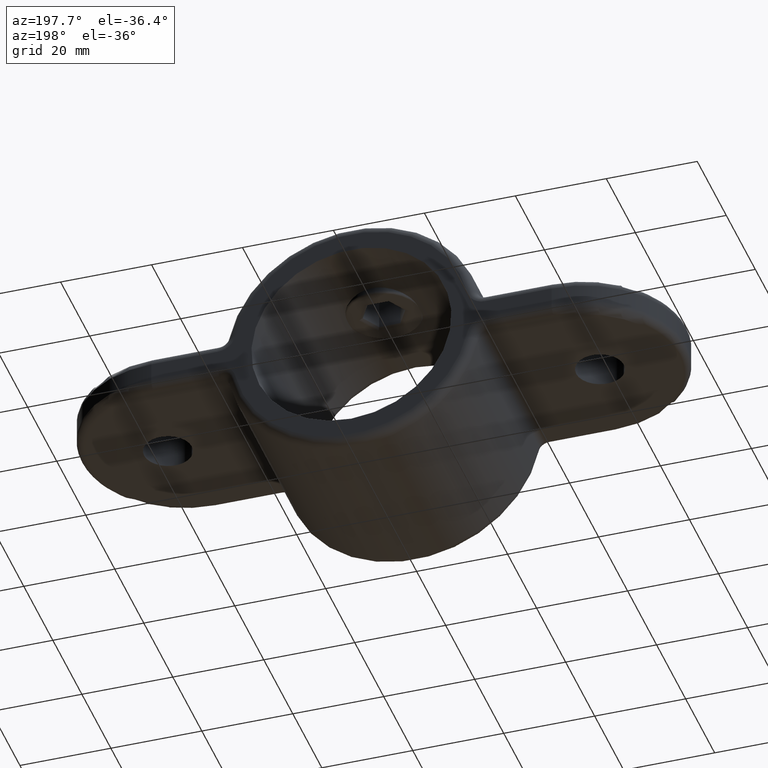
[diagram: clean part render]
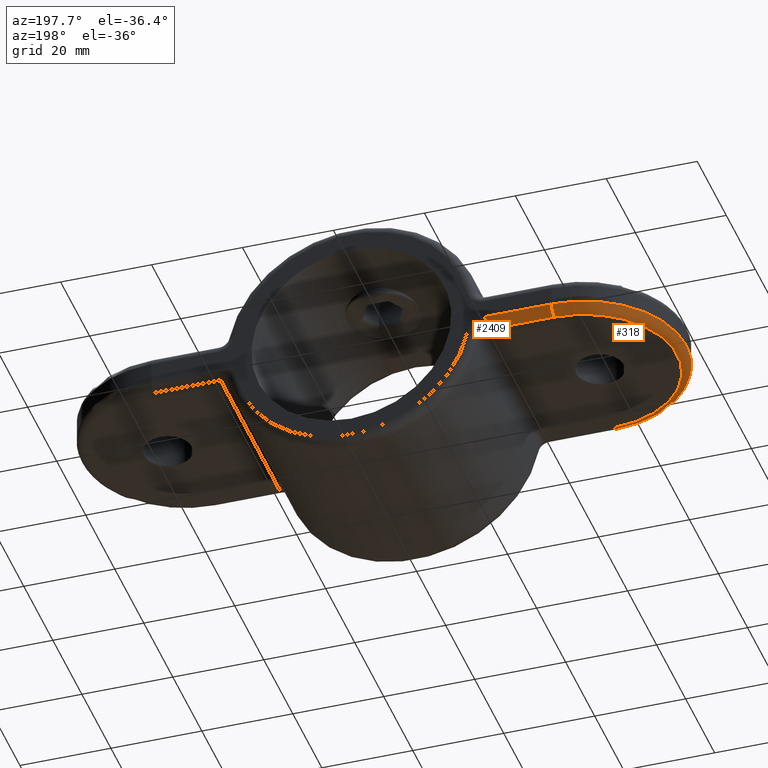
[diagram: same view with one multi-face feature highlighted, each face labeled with its STEP entity id]
A machine part, auxiliary view. The highlighted faces form ONE feature: a constant-radius fillet chain: 2 tangent blend faces with common blend radius 2 mm. The faces share edges in the B-rep.
Their STEP definitions:
[1] entity #2409 (Cylinder):
#24 = CARTESIAN_POINT ( 'NONE',  ( -29.39387691339813458, 43.00000000000000000, -4.000000000000000000 ) ) ;
#71 = VERTEX_POINT ( 'NONE', #1847 ) ;
#77 = AXIS2_PLACEMENT_3D ( 'NONE', #1333, #443, #875 ) ;
#339 = EDGE_CURVE ( 'NONE', #71, #881, #2463, .T. ) ;
#362 = VECTOR ( 'NONE', #609, 1000.000000000000000 ) ;
#390 = CIRCLE ( 'NONE', #684, 2.000000000000000000 ) ;
#430 = CIRCLE ( 'NONE', #77, 2.000000000000000000 ) ;
#443 = DIRECTION ( 'NONE',  ( 1.000000000000000000, -0.000000000000000000, 0.000000000000000000 ) ) ;
#500 = FACE_OUTER_BOUND ( 'NONE', #2311, .T. ) ;
#560 = DIRECTION ( 'NONE',  ( 0.000000000000000000, 0.000000000000000000, 1.000000000000000000 ) ) ;
#609 = DIRECTION ( 'NONE',  ( 1.000000000000000000, -0.000000000000000000, -0.000000000000000000 ) ) ;
#684 = AXIS2_PLACEMENT_3D ( 'NONE', #1663, #1688, #560 ) ;
#691 = ORIENTED_EDGE ( 'NONE', *, *, #1331, .F. ) ;
#734 = CARTESIAN_POINT ( 'NONE',  ( 0.000000000000000000, 43.00000000000000000, -2.000000000000000000 ) ) ;
#788 = AXIS2_PLACEMENT_3D ( 'NONE', #734, #2722, #1815 ) ;
#790 = ORIENTED_EDGE ( 'NONE', *, *, #339, .F. ) ;
#801 = CARTESIAN_POINT ( 'NONE',  ( -27.71281292110203509, 43.00000000000000000, -4.000000000000000000 ) ) ;
#837 = CARTESIAN_POINT ( 'NONE',  ( -44.00000000000001421, 45.00000000000000000, -2.000000000000000000 ) ) ;
#875 = DIRECTION ( 'NONE',  ( 0.000000000000000000, 0.000000000000000000, -1.000000000000000000 ) ) ;
#881 = VERTEX_POINT ( 'NONE', #24 ) ;
#907 = CARTESIAN_POINT ( 'NONE',  ( -29.39387691339813458, 45.00000000000000000, -2.000000000000000000 ) ) ;
#999 = EDGE_CURVE ( 'NONE', #1511, #1837, #1346, .T. ) ;
#1306 = CYLINDRICAL_SURFACE ( 'NONE', #788, 2.000000000000000000 ) ;
#1331 = EDGE_CURVE ( 'NONE', #881, #1511, #430, .T. ) ;
#1333 = CARTESIAN_POINT ( 'NONE',  ( -29.39387691339813458, 43.00000000000000000, -2.000000000000000000 ) ) ;
#1346 = LINE ( 'NONE', #2056, #2049 ) ;
#1511 = VERTEX_POINT ( 'NONE', #907 ) ;
#1663 = CARTESIAN_POINT ( 'NONE',  ( -44.00000000000001421, 43.00000000000000000, -2.000000000000000000 ) ) ;
#1688 = DIRECTION ( 'NONE',  ( -1.000000000000000000, 0.000000000000000000, 0.000000000000000000 ) ) ;
#1815 = DIRECTION ( 'NONE',  ( 0.000000000000000000, 0.000000000000000000, -1.000000000000000000 ) ) ;
#1837 = VERTEX_POINT ( 'NONE', #837 ) ;
#1847 = CARTESIAN_POINT ( 'NONE',  ( -44.00000000000001421, 43.00000000000000000, -4.000000000000000000 ) ) ;
#2049 = VECTOR ( 'NONE', #2479, 1000.000000000000000 ) ;
#2056 = CARTESIAN_POINT ( 'NONE',  ( -44.00000000000001421, 45.00000000000000000, -2.000000000000000000 ) ) ;
#2154 = ORIENTED_EDGE ( 'NONE', *, *, #999, .F. ) ;
#2311 = EDGE_LOOP ( 'NONE', ( #691, #790, #2874, #2154 ) ) ;
#2409 = ADVANCED_FACE ( 'NONE', ( #500 ), #1306, .T. ) ;
#2463 = LINE ( 'NONE', #801, #362 ) ;
#2479 = DIRECTION ( 'NONE',  ( -1.000000000000000000, 0.000000000000000000, 0.000000000000000000 ) ) ;
#2609 = EDGE_CURVE ( 'NONE', #1837, #71, #390, .T. ) ;
#2722 = DIRECTION ( 'NONE',  ( 1.000000000000000000, 0.000000000000000000, 0.000000000000000000 ) ) ;
#2874 = ORIENTED_EDGE ( 'NONE', *, *, #2609, .F. ) ;
[2] entity #318 (Torus):
#71 = VERTEX_POINT ( 'NONE', #1847 ) ;
#104 = VERTEX_POINT ( 'NONE', #565 ) ;
#302 = DIRECTION ( 'NONE',  ( 1.000000000000000000, 8.462065736472230835E-16, 0.000000000000000000 ) ) ;
#318 = ADVANCED_FACE ( 'NONE', ( #2178 ), #764, .T. ) ;
#324 = AXIS2_PLACEMENT_3D ( 'NONE', #2817, #2602, #1462 ) ;
#379 = AXIS2_PLACEMENT_3D ( 'NONE', #708, #1611, #1819 ) ;
#390 = CIRCLE ( 'NONE', #684, 2.000000000000000000 ) ;
#560 = DIRECTION ( 'NONE',  ( 0.000000000000000000, 0.000000000000000000, 1.000000000000000000 ) ) ;
#565 = CARTESIAN_POINT ( 'NONE',  ( -44.00000000000001421, 2.000000000000000000, -4.000000000000000000 ) ) ;
#666 = AXIS2_PLACEMENT_3D ( 'NONE', #2262, #1840, #302 ) ;
#684 = AXIS2_PLACEMENT_3D ( 'NONE', #1663, #1688, #560 ) ;
#708 = CARTESIAN_POINT ( 'NONE',  ( -44.00000000000001421, 2.000000000000003553, -2.000000000000000000 ) ) ;
#764 = TOROIDAL_SURFACE ( 'NONE', #1316, 20.49999999999999645, 2.000000000000000000 ) ;
#826 = DIRECTION ( 'NONE',  ( 1.000000000000000000, 0.000000000000000000, 0.000000000000000000 ) ) ;
#837 = CARTESIAN_POINT ( 'NONE',  ( -44.00000000000001421, 45.00000000000000000, -2.000000000000000000 ) ) ;
#895 = EDGE_LOOP ( 'NONE', ( #2561, #1114, #911, #963 ) ) ;
#911 = ORIENTED_EDGE ( 'NONE', *, *, #2028, .F. ) ;
#963 = ORIENTED_EDGE ( 'NONE', *, *, #2187, .F. ) ;
#1114 = ORIENTED_EDGE ( 'NONE', *, *, #2081, .F. ) ;
#1146 = VERTEX_POINT ( 'NONE', #2284 ) ;
#1316 = AXIS2_PLACEMENT_3D ( 'NONE', #2591, #1465, #826 ) ;
#1462 = DIRECTION ( 'NONE',  ( 1.000000000000000000, 0.000000000000000000, 0.000000000000000000 ) ) ;
#1465 = DIRECTION ( 'NONE',  ( 0.000000000000000000, 0.000000000000000000, 1.000000000000000000 ) ) ;
#1611 = DIRECTION ( 'NONE',  ( 1.000000000000000000, 0.000000000000000000, 0.000000000000000000 ) ) ;
#1663 = CARTESIAN_POINT ( 'NONE',  ( -44.00000000000001421, 43.00000000000000000, -2.000000000000000000 ) ) ;
#1683 = CIRCLE ( 'NONE', #324, 22.49999999999999645 ) ;
#1688 = DIRECTION ( 'NONE',  ( -1.000000000000000000, 0.000000000000000000, 0.000000000000000000 ) ) ;
#1819 = DIRECTION ( 'NONE',  ( 0.000000000000000000, 0.000000000000000000, -1.000000000000000000 ) ) ;
#1837 = VERTEX_POINT ( 'NONE', #837 ) ;
#1840 = DIRECTION ( 'NONE',  ( -0.000000000000000000, -0.000000000000000000, -1.000000000000000000 ) ) ;
#1847 = CARTESIAN_POINT ( 'NONE',  ( -44.00000000000001421, 43.00000000000000000, -4.000000000000000000 ) ) ;
#2028 = EDGE_CURVE ( 'NONE', #1146, #104, #2317, .T. ) ;
#2081 = EDGE_CURVE ( 'NONE', #104, #71, #2358, .T. ) ;
#2178 = FACE_OUTER_BOUND ( 'NONE', #895, .T. ) ;
#2187 = EDGE_CURVE ( 'NONE', #1837, #1146, #1683, .T. ) ;
#2262 = CARTESIAN_POINT ( 'NONE',  ( -44.00000000000001421, 22.50000000000000000, -4.000000000000000000 ) ) ;
#2284 = CARTESIAN_POINT ( 'NONE',  ( -44.00000000000001421, 0.000000000000000000, -2.000000000000000000 ) ) ;
#2317 = CIRCLE ( 'NONE', #379, 2.000000000000000000 ) ;
#2358 = CIRCLE ( 'NONE', #666, 20.49999999999999645 ) ;
#2561 = ORIENTED_EDGE ( 'NONE', *, *, #2609, .T. ) ;
#2591 = CARTESIAN_POINT ( 'NONE',  ( -44.00000000000001421, 22.50000000000000000, -2.000000000000000000 ) ) ;
#2602 = DIRECTION ( 'NONE',  ( 0.000000000000000000, 0.000000000000000000, 1.000000000000000000 ) ) ;
#2609 = EDGE_CURVE ( 'NONE', #1837, #71, #390, .T. ) ;
#2817 = CARTESIAN_POINT ( 'NONE',  ( -44.00000000000001421, 22.50000000000000000, -2.000000000000000000 ) ) ;